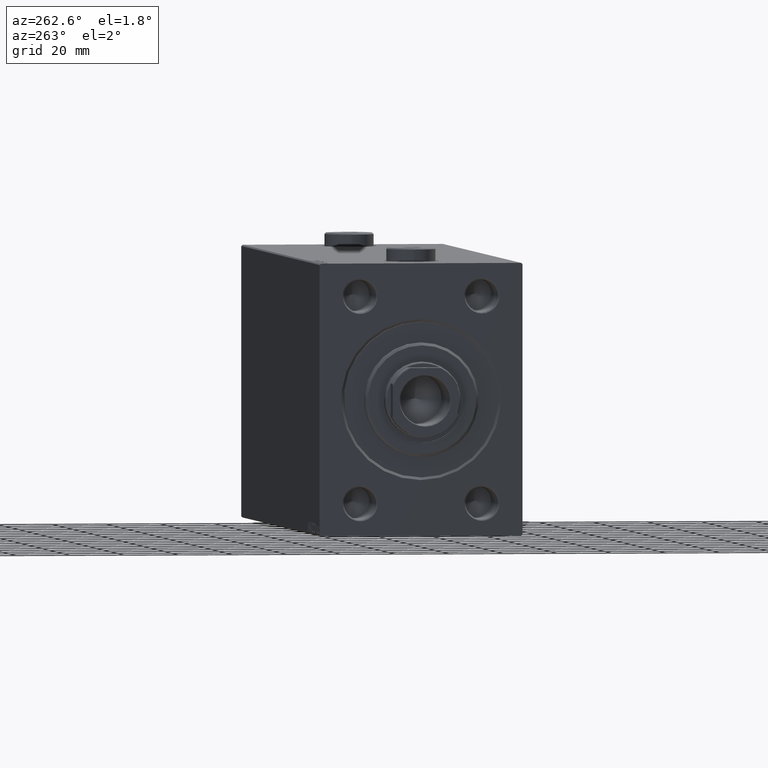
[diagram: clean part render]
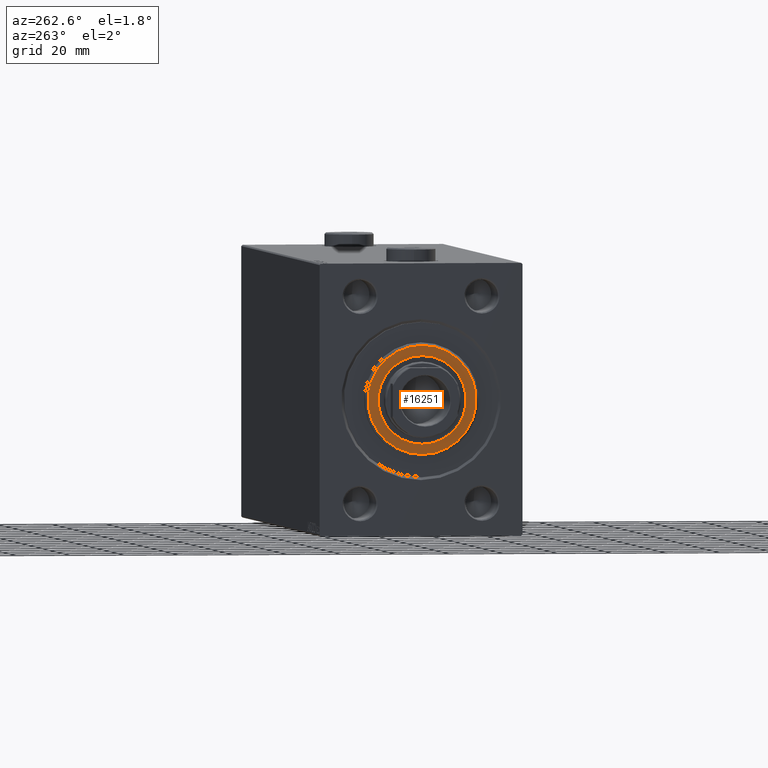
[diagram: same view with one face highlighted and labeled with its STEP entity id]
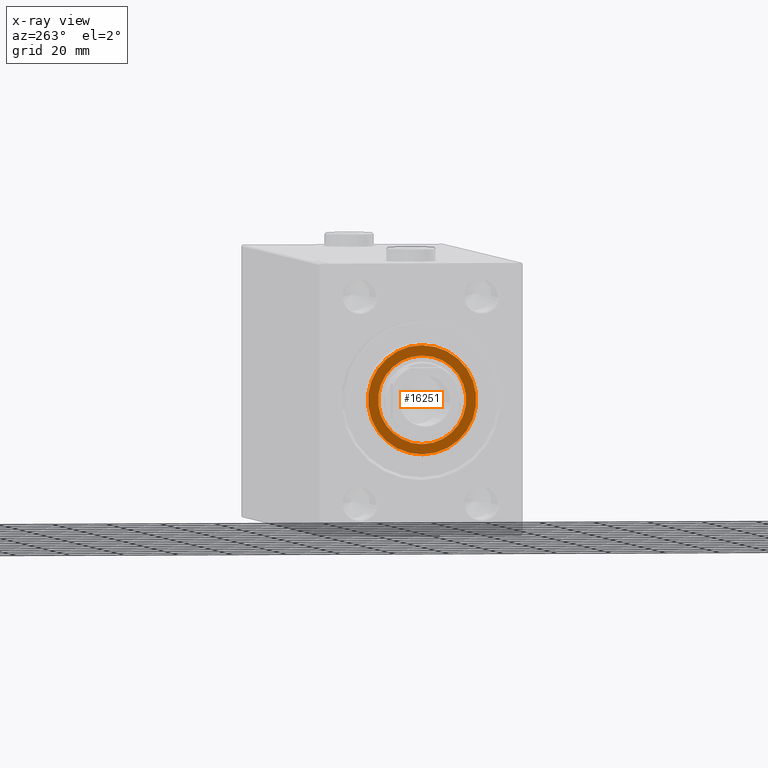
[diagram: x-ray of the same camera — body ghosted, the highlighted face saturated]
A machine part, auxiliary view. The second image highlights one B-rep face of the part: STEP entity #16251.
The next image is the same camera in x-ray: the body ghosted, the highlighted face saturated — about 0% of this face is hidden behind the body in this view.
In plain terms, the highlighted planar face has unit normal (-1, 0, 0).
Its self-contained STEP definition (entity closure, byte-faithful):
#99 = DIRECTION ( 'NONE',  ( 1.000000000000000000, -0.000000000000000000, 0.000000000000000000 ) ) ;
#611 = ORIENTED_EDGE ( 'NONE', *, *, #4919, .T. ) ;
#1400 = CARTESIAN_POINT ( 'NONE',  ( 3.000000000000000000, 0.000000000000000000, 0.000000000000000000 ) ) ;
#3557 = CIRCLE ( 'NONE', #44137, 16.25000000000000000 ) ;
#4234 = FACE_OUTER_BOUND ( 'NONE', #9681, .T. ) ;
#4919 = EDGE_CURVE ( 'NONE', #18278, #13708, #45573, .T. ) ;
#6243 = ORIENTED_EDGE ( 'NONE', *, *, #11398, .T. ) ;
#7810 = CARTESIAN_POINT ( 'NONE',  ( 3.000000000000000000, 1.990051048614449313E-15, 16.25000000000000000 ) ) ;
#7951 = DIRECTION ( 'NONE',  ( 0.000000000000000000, 0.000000000000000000, -1.000000000000000000 ) ) ;
#8746 = CARTESIAN_POINT ( 'NONE',  ( 3.000000000000000000, 0.000000000000000000, 0.000000000000000000 ) ) ;
#9197 = EDGE_CURVE ( 'NONE', #45701, #15627, #41886, .T. ) ;
#9681 = EDGE_LOOP ( 'NONE', ( #6243, #611 ) ) ;
#10179 = EDGE_CURVE ( 'NONE', #15627, #45701, #3557, .T. ) ;
#11398 = EDGE_CURVE ( 'NONE', #13708, #18278, #13910, .T. ) ;
#11615 = CARTESIAN_POINT ( 'NONE',  ( 3.000000000000000000, 0.000000000000000000, -16.25000000000000000 ) ) ;
#11983 = DIRECTION ( 'NONE',  ( 0.000000000000000000, 0.000000000000000000, -1.000000000000000000 ) ) ;
#13708 = VERTEX_POINT ( 'NONE', #32396 ) ;
#13910 = CIRCLE ( 'NONE', #23531, 19.99999999999999645 ) ;
#15627 = VERTEX_POINT ( 'NONE', #11615 ) ;
#16198 = CARTESIAN_POINT ( 'NONE',  ( 3.000000000000000000, 2.510525938252074087E-15, -19.99999999999999645 ) ) ;
#16251 = ADVANCED_FACE ( 'NONE', ( #4234, #39125 ), #25722, .T. ) ;
#17771 = DIRECTION ( 'NONE',  ( 1.000000000000000000, 0.000000000000000000, 0.000000000000000000 ) ) ;
#18278 = VERTEX_POINT ( 'NONE', #16198 ) ;
#19643 = DIRECTION ( 'NONE',  ( 1.000000000000000000, 0.000000000000000000, 0.000000000000000000 ) ) ;
#21228 = DIRECTION ( 'NONE',  ( 0.000000000000000000, 0.000000000000000000, -1.000000000000000000 ) ) ;
#23531 = AXIS2_PLACEMENT_3D ( 'NONE', #32213, #99, #7951 ) ;
#23894 = ORIENTED_EDGE ( 'NONE', *, *, #9197, .F. ) ;
#25722 = PLANE ( 'NONE',  #28058 ) ;
#28058 = AXIS2_PLACEMENT_3D ( 'NONE', #33114, #36581, #28951 ) ;
#28841 = CARTESIAN_POINT ( 'NONE',  ( 3.000000000000000000, 0.000000000000000000, 0.000000000000000000 ) ) ;
#28951 = DIRECTION ( 'NONE',  ( 0.000000000000000000, 0.000000000000000000, -1.000000000000000000 ) ) ;
#32213 = CARTESIAN_POINT ( 'NONE',  ( 3.000000000000000000, 0.000000000000000000, 0.000000000000000000 ) ) ;
#32396 = CARTESIAN_POINT ( 'NONE',  ( 3.000000000000000000, 0.000000000000000000, 19.99999999999999645 ) ) ;
#33046 = DIRECTION ( 'NONE',  ( 0.000000000000000000, 0.000000000000000000, -1.000000000000000000 ) ) ;
#33114 = CARTESIAN_POINT ( 'NONE',  ( 3.000000000000000000, 0.000000000000000000, 0.000000000000000000 ) ) ;
#36581 = DIRECTION ( 'NONE',  ( 1.000000000000000000, -0.000000000000000000, 0.000000000000000000 ) ) ;
#36942 = DIRECTION ( 'NONE',  ( 1.000000000000000000, -0.000000000000000000, 0.000000000000000000 ) ) ;
#38743 = ORIENTED_EDGE ( 'NONE', *, *, #10179, .F. ) ;
#39125 = FACE_BOUND ( 'NONE', #41664, .T. ) ;
#40410 = AXIS2_PLACEMENT_3D ( 'NONE', #1400, #19643, #33046 ) ;
#41664 = EDGE_LOOP ( 'NONE', ( #38743, #23894 ) ) ;
#41886 = CIRCLE ( 'NONE', #40410, 16.25000000000000000 ) ;
#41889 = AXIS2_PLACEMENT_3D ( 'NONE', #8746, #36942, #11983 ) ;
#44137 = AXIS2_PLACEMENT_3D ( 'NONE', #28841, #17771, #21228 ) ;
#45573 = CIRCLE ( 'NONE', #41889, 19.99999999999999645 ) ;
#45701 = VERTEX_POINT ( 'NONE', #7810 ) ;